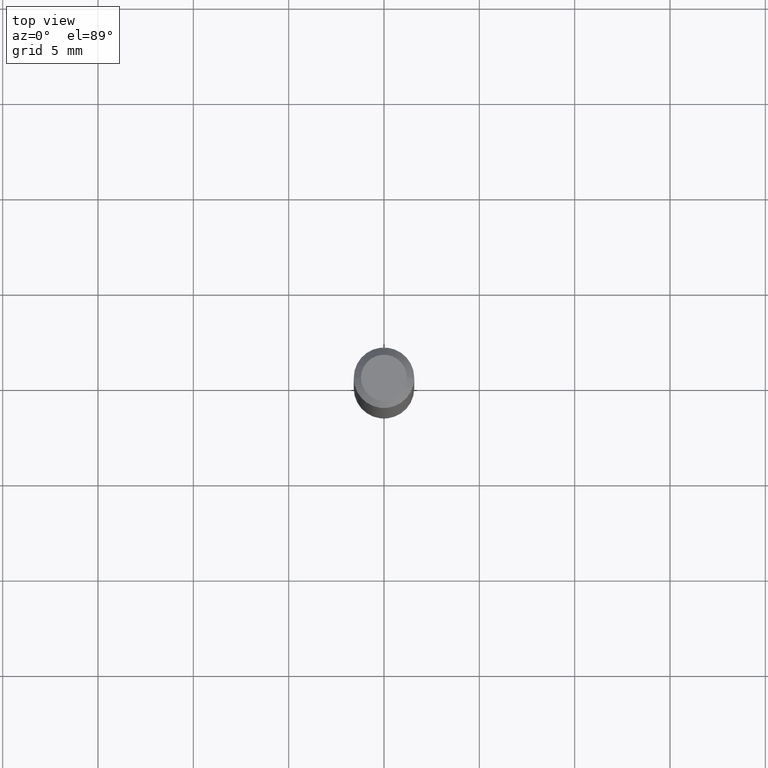
[diagram: clean part render]
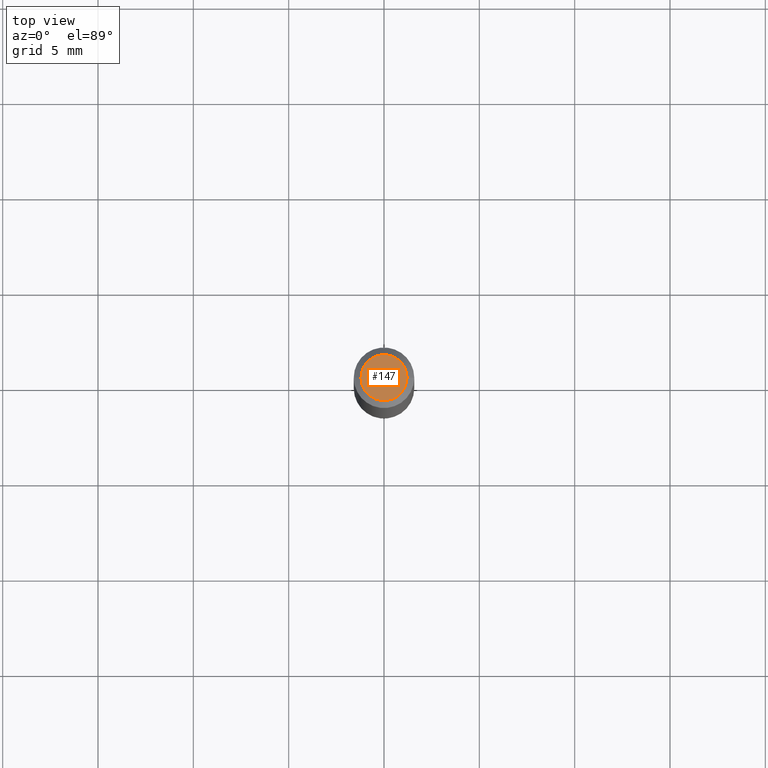
[diagram: same view with one face highlighted and labeled with its STEP entity id]
A machine part, top view. The second image highlights one B-rep face of the part: STEP entity #147.
In plain terms, the highlighted planar face has unit normal (0, -0, -1).
Its self-contained STEP definition (entity closure, byte-faithful):
#1 = EDGE_LOOP ( 'NONE', ( #4, #152 ) ) ;
#4 = ORIENTED_EDGE ( 'NONE', *, *, #431, .T. ) ;
#5 = AXIS2_PLACEMENT_3D ( 'NONE', #92, #380, #197 ) ;
#12 = DIRECTION ( 'NONE',  ( -2.445468806185136597E-29, 3.491481338843145583E-15, 1.000000000000000000 ) ) ;
#82 = DIRECTION ( 'NONE',  ( 2.438088387897960049E-29, -3.491481338843145188E-15, -1.000000000000000000 ) ) ;
#92 = CARTESIAN_POINT ( 'NONE',  ( 3.869415696791911762E-44, -5.524500113600271674E-30, -1.582279719538967596E-15 ) ) ;
#133 = CARTESIAN_POINT ( 'NONE',  ( 0.04749999999999999362, -4.035134999187605740E-16, -1.582279719538965032E-15 ) ) ;
#135 = DIRECTION ( 'NONE',  ( -1.000000000000000000, 6.982962677686265922E-15, -4.876176775795935793E-29 ) ) ;
#140 = CIRCLE ( 'NONE', #285, 0.04749999999999999362 ) ;
#147 = ADVANCED_FACE ( 'NONE', ( #304 ), #451, .F. ) ;
#152 = ORIENTED_EDGE ( 'NONE', *, *, #368, .T. ) ;
#169 = CARTESIAN_POINT ( 'NONE',  ( -0.04749999999999999362, 3.578768372314182896E-16, -1.582279719538970160E-15 ) ) ;
#197 = DIRECTION ( 'NONE',  ( 1.000000000000000000, -6.982962677686267499E-15, 5.108144071313017768E-29 ) ) ;
#229 = CIRCLE ( 'NONE', #5, 0.04749999999999999362 ) ;
#285 = AXIS2_PLACEMENT_3D ( 'NONE', #403, #12, #452 ) ;
#293 = VERTEX_POINT ( 'NONE', #133 ) ;
#304 = FACE_OUTER_BOUND ( 'NONE', #1, .T. ) ;
#332 = VERTEX_POINT ( 'NONE', #169 ) ;
#368 = EDGE_CURVE ( 'NONE', #293, #332, #229, .T. ) ;
#374 = CARTESIAN_POINT ( 'NONE',  ( 3.316907271900976096E-16, 0.04749999999999999362, -9.569852233645332438E-16 ) ) ;
#380 = DIRECTION ( 'NONE',  ( -2.445468806185136597E-29, 3.491481338843145583E-15, 1.000000000000000000 ) ) ;
#403 = CARTESIAN_POINT ( 'NONE',  ( 3.869415696791911762E-44, -5.524500113600271674E-30, -1.582279719538967596E-15 ) ) ;
#431 = EDGE_CURVE ( 'NONE', #332, #293, #140, .T. ) ;
#450 = AXIS2_PLACEMENT_3D ( 'NONE', #374, #82, #135 ) ;
#451 = PLANE ( 'NONE',  #450 ) ;
#452 = DIRECTION ( 'NONE',  ( 1.000000000000000000, -6.982962677686267499E-15, 5.108144071313017768E-29 ) ) ;